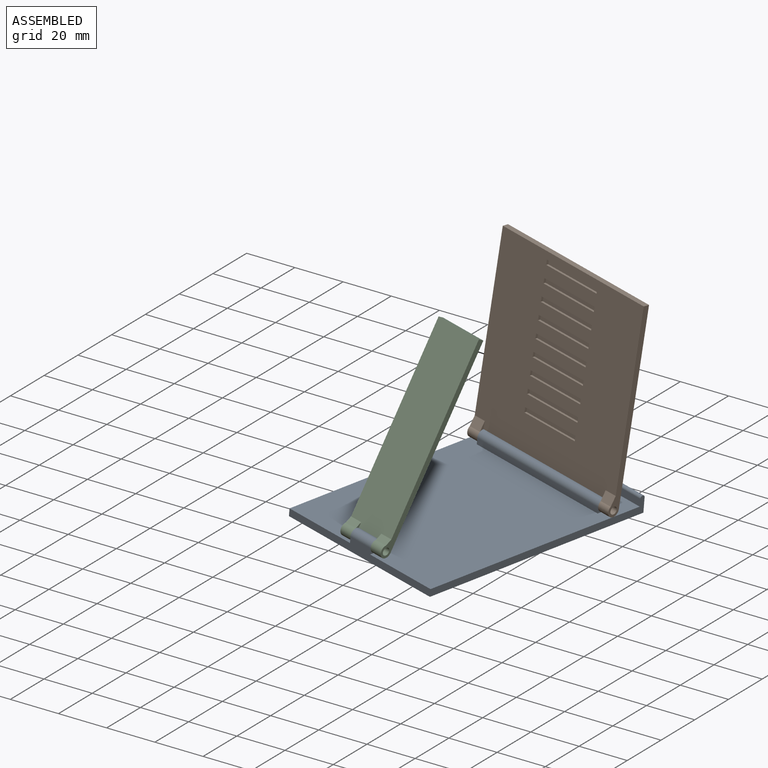
[diagram: assembled view]
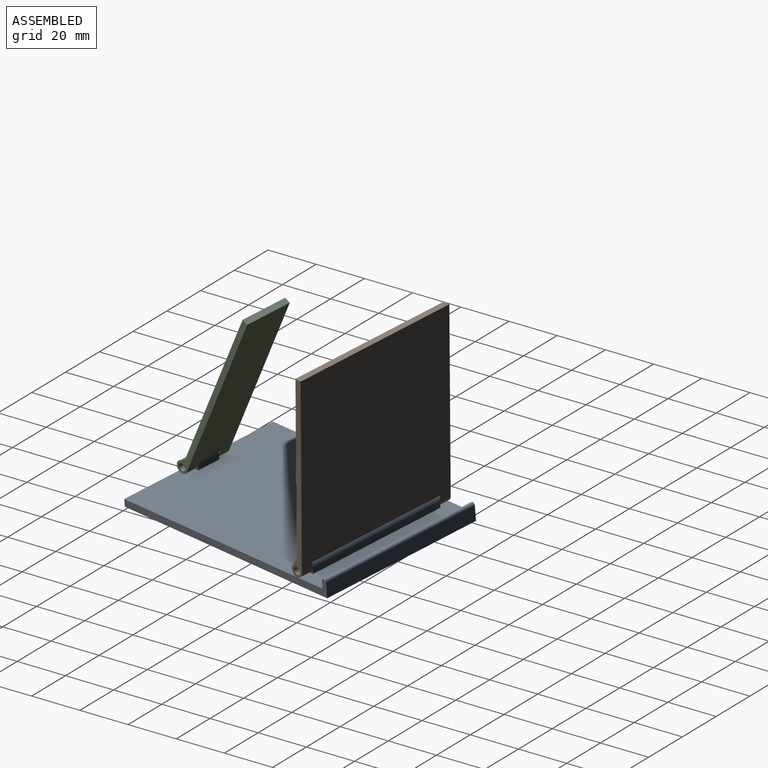
[diagram: assembled view, second angle]
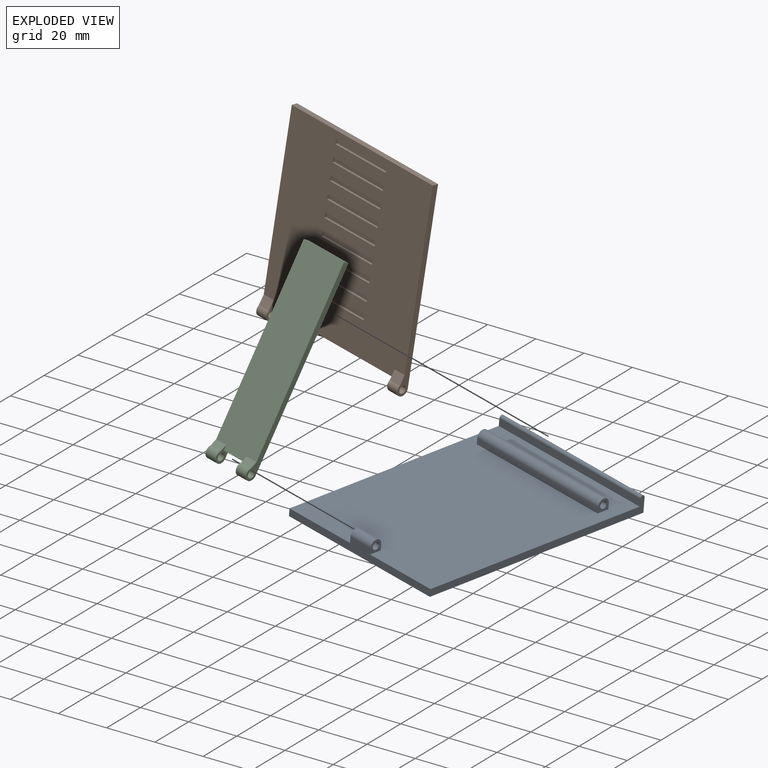
[diagram: exploded view]
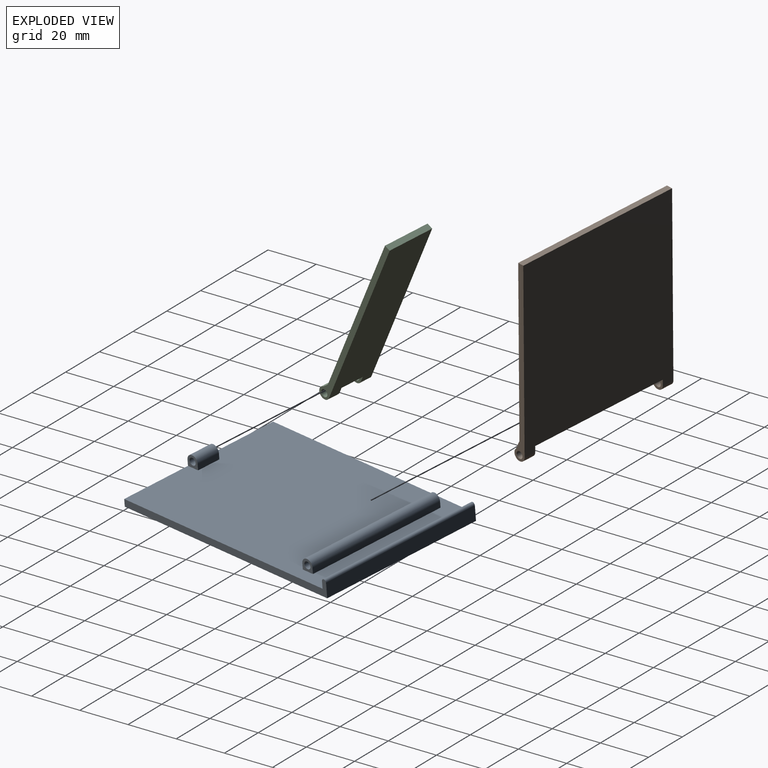
[diagram: exploded view, second angle]
ASSEMBLY  parts=3 mates=2
PART A: 19 faces, bbox 70x100x8 mm
  f0: plane 98x70mm, normal (0,0,1), area 6510mm2, adj f1,f3,f4,f6,f8,f9,f10,f11
  f1: plane 100x7mm, normal (1,0,0), area 307.6mm2, adj f0,f2,f4,f5,f6,f7
  f2: plane 70x6mm, normal (0,1,0), area 420mm2, adj f1,f3,f5,f7
  f3: plane 100x7mm, normal (-1,0,0), area 307.6mm2, adj f0,f2,f4,f5,f6,f7
  f4: plane 70x5.5mm, normal (0,-1,0), area 235mm2, adj f0,f1,f3,f5,f14,f15,f17
  f5: plane 100x70mm, normal (0,0,-1), area 7000mm2, adj f1,f2,f3,f4
  f6: plane 70x3mm, normal (0,-1,0), area 210mm2, adj f0,f1,f3,f7
  f7: cylinder r=1mm len=70mm, axis (1,0,0), area 219.9mm2, adj f1,f2,f3,f6
  f8: plane 5x5mm, normal (1,0,0), area 15.2mm2, adj f0,f9,f11,f12,f13
  f9: plane 60x2.5mm, normal (0,1,0), area 150mm2, adj f0,f8,f10,f12
  f10: plane 5x5mm, normal (-1,0,0), area 15.2mm2, adj f0,f9,f11,f12,f13
  f11: plane 60x2.5mm, normal (0,-1,0), area 150mm2, adj f0,f8,f10,f12
  f12: cylinder r=2.5mm len=60mm, axis (-1,0,0), area 471.2mm2, adj f8,f9,f10,f11
  f13: cylinder r=1.5mm len=60mm, axis (1,0,0), area 565.5mm2, adj f8,f10
  f14: plane 5x5mm, normal (-1,0,0), area 15.2mm2, adj f0,f4,f16,f17,f18
  f15: plane 5x5mm, normal (1,0,0), area 15.2mm2, adj f0,f4,f16,f17,f18
  f16: plane 10x2.5mm, normal (0,1,0), area 25mm2, adj f0,f14,f15,f17
  f17: cylinder r=2.5mm len=10mm, axis (1,0,0), area 78.5mm2, adj f4,f14,f15,f16
  f18: cylinder r=1.5mm len=10mm, axis (1,0,0), area 94.2mm2, adj f14,f15
PART B: 59 faces, bbox 70x80x5 mm
  f0: plane 75x70mm, normal (0,0,1), area 4769.1mm2, adj f1,f2,f3,f4,f5,f6,f12,f13
  f1: plane 60x2.5mm, normal (0,-1,0), area 150mm2, adj f0,f5,f6,f7
  f2: plane 80x5mm, normal (1,0,0), area 203.8mm2, adj f0,f3,f7,f9,f11,f57
  f3: plane 70x2.5mm, normal (0,1,0), area 175mm2, adj f0,f2,f4,f7
  f4: plane 80x5mm, normal (-1,0,0), area 203.8mm2, adj f0,f3,f7,f8,f10,f58
  f5: plane 8.09x5mm, normal (-1,0,0), area 16.3mm2, adj f0,f1,f7,f9,f11,f57
  f6: plane 8.09x5mm, normal (1,0,0), area 16.3mm2, adj f0,f1,f7,f8,f10,f58
  f7: plane 77.5x70mm, normal (0,0,-1), area 5275mm2, adj f1,f2,f3,f4,f5,f6,f10,f11
  f8: cylinder r=1.5mm len=5mm, axis (-1,0,0), area 47.1mm2, adj f4,f6
  f9: cylinder r=1.5mm len=5mm, axis (-1,0,0), area 47.1mm2, adj f2,f5
  f10: cylinder r=2.5mm len=5mm, axis (-1,0,0), area 49.8mm2, adj f4,f6,f7,f58
  f11: cylinder r=2.5mm len=5mm, axis (-1,0,0), area 49.8mm2, adj f2,f5,f7,f57
  f12: plane 25x1mm, normal (0,-1,0), area 25mm2, adj f0,f13,f15,f16
  f13: plane 2x1mm, normal (1,0,0), area 2mm2, adj f0,f12,f14,f16
  f14: plane 25x1mm, normal (0,1,0), area 25mm2, adj f0,f13,f15,f16
  f15: plane 2x1mm, normal (-1,0,0), area 2mm2, adj f0,f12,f14,f16
  f16: plane 25x2mm, normal (0,0,1), area 50mm2, adj f12,f13,f14,f15
  f17: plane 25x1mm, normal (0,-1,0), area 25mm2, adj f0,f18,f20,f21
  f18: plane 2x1mm, normal (1,0,0), area 2mm2, adj f0,f17,f19,f21
  f19: plane 25x1mm, normal (0,1,0), area 25mm2, adj f0,f18,f20,f21
  f20: plane 2x1mm, normal (-1,0,0), area 2mm2, adj f0,f17,f19,f21
  f21: plane 25x2mm, normal (0,0,1), area 50mm2, adj f17,f18,f19,f20
  f22: plane 25x1mm, normal (0,-1,0), area 25mm2, adj f0,f23,f25,f26
  f23: plane 2x1mm, normal (1,0,0), area 2mm2, adj f0,f22,f24,f26
  f24: plane 25x1mm, normal (0,1,0), area 25mm2, adj f0,f23,f25,f26
  f25: plane 2x1mm, normal (-1,0,0), area 2mm2, adj f0,f22,f24,f26
  f26: plane 25x2mm, normal (0,0,1), area 50mm2, adj f22,f23,f24,f25
  f27: plane 25x1mm, normal (0,-1,0), area 25mm2, adj f0,f28,f30,f31
  f28: plane 2x1mm, normal (1,0,0), area 2mm2, adj f0,f27,f29,f31
  f29: plane 25x1mm, normal (0,1,0), area 25mm2, adj f0,f28,f30,f31
  f30: plane 2x1mm, normal (-1,0,0), area 2mm2, adj f0,f27,f29,f31
  f31: plane 25x2mm, normal (0,0,1), area 50mm2, adj f27,f28,f29,f30
  f32: plane 25x1mm, normal (0,-1,0), area 25mm2, adj f0,f33,f35,f36
  f33: plane 2x1mm, normal (1,0,0), area 2mm2, adj f0,f32,f34,f36
  f34: plane 25x1mm, normal (0,1,0), area 25mm2, adj f0,f33,f35,f36
  f35: plane 2x1mm, normal (-1,0,0), area 2mm2, adj f0,f32,f34,f36
  f36: plane 25x2mm, normal (0,0,1), area 50mm2, adj f32,f33,f34,f35
  f37: plane 25x1mm, normal (0,-1,0), area 25mm2, adj f0,f38,f40,f41
  f38: plane 2x1mm, normal (1,0,0), area 2mm2, adj f0,f37,f39,f41
  f39: plane 25x1mm, normal (0,1,0), area 25mm2, adj f0,f38,f40,f41
  f40: plane 2x1mm, normal (-1,0,0), area 2mm2, adj f0,f37,f39,f41
  f41: plane 25x2mm, normal (0,0,1), area 50mm2, adj f37,f38,f39,f40
  f42: plane 25x1mm, normal (0,-1,0), area 25mm2, adj f0,f43,f45,f46
  f43: plane 2x1mm, normal (1,0,0), area 2mm2, adj f0,f42,f44,f46
  f44: plane 25x1mm, normal (0,1,0), area 25mm2, adj f0,f43,f45,f46
  f45: plane 2x1mm, normal (-1,0,0), area 2mm2, adj f0,f42,f44,f46
  f46: plane 25x2mm, normal (0,0,1), area 50mm2, adj f42,f43,f44,f45
  f47: plane 25x1mm, normal (0,-1,0), area 25mm2, adj f0,f48,f50,f51
  f48: plane 2x1mm, normal (1,0,0), area 2mm2, adj f0,f47,f49,f51
  f49: plane 25x1mm, normal (0,1,0), area 25mm2, adj f0,f48,f50,f51
  f50: plane 2x1mm, normal (-1,0,0), area 2mm2, adj f0,f47,f49,f51
  f51: plane 25x2mm, normal (0,0,1), area 50mm2, adj f47,f48,f49,f50
  f52: plane 2x1mm, normal (-1,0,0), area 2mm2, adj f0,f53,f55,f56
  f53: plane 25x1mm, normal (0,-1,0), area 25mm2, adj f0,f52,f54,f56
  f54: plane 2x1mm, normal (1,0,0), area 2mm2, adj f0,f53,f55,f56
  f55: plane 25x1mm, normal (0,1,0), area 25mm2, adj f0,f52,f54,f56
  f56: plane 25x2mm, normal (0,0,1), area 50mm2, adj f52,f53,f54,f55
  f57: plane 5x3.73mm, normal (0,0.41,0.91), area 20.4mm2, adj f0,f2,f5,f11
  f58: plane 5x3.73mm, normal (0,0.41,0.91), area 20.4mm2, adj f0,f4,f6,f10
PART C: 14 faces, bbox 20x82x5 mm
  f0: plane 20x2.5mm, normal (0,-1,0), area 50mm2, adj f1,f3,f6,f11
  f1: plane 82x5mm, normal (1,0,0), area 207.7mm2, adj f0,f6,f7,f10,f11,f13
  f2: plane 10x2.5mm, normal (0,1,0), area 25mm2, adj f4,f5,f6,f11
  f3: plane 82x5mm, normal (-1,0,0), area 207.7mm2, adj f0,f6,f8,f9,f11,f12
  f4: plane 7.11x5mm, normal (-1,0,0), area 15.2mm2, adj f2,f6,f7,f10,f11,f13
  f5: plane 7.11x5mm, normal (1,0,0), area 15.2mm2, adj f2,f6,f8,f9,f11,f12
  f6: plane 79.5x20mm, normal (0,0,-1), area 1565mm2, adj f0,f1,f2,f3,f4,f5,f7,f8
  f7: cylinder r=2.5mm len=5mm, axis (1,0,0), area 51.7mm2, adj f1,f4,f6,f13
  f8: cylinder r=2.5mm len=5mm, axis (1,0,0), area 51.7mm2, adj f3,f5,f6,f12
  f9: cylinder r=1.5mm len=5mm, axis (1,0,0), area 47.1mm2, adj f3,f5
  f10: cylinder r=1.5mm len=5mm, axis (1,0,0), area 47.1mm2, adj f1,f4
  f11: plane 77x20mm, normal (0,0,1), area 1518.9mm2, adj f0,f1,f2,f3,f4,f5,f12,f13
  f12: plane 5x2.51mm, normal (0,-0.48,0.88), area 14.3mm2, adj f3,f5,f8,f11
  f13: plane 5x2.51mm, normal (0,-0.48,0.88), area 14.3mm2, adj f1,f4,f7,f11
PLACE A rot(axis=(0.02,0.43,-0.9),12.8deg) t=(-5.44,3.7,-6.85)mm
PLACE B rot(axis=(0.99,-0.05,-0.16),86deg) t=(6.84,43.52,35.38)mm
PLACE C rot(axis=(-0.01,-0.52,0.85),167.3deg) t=(-7.28,-23.79,31.6)mm
MATE revolute A.f12 <-> B.f8  axis (-0.98,0.2,0.1) through (-27.09,44.39,1.32)mm
MATE revolute C.f7 <-> A.f17  axis (0.98,-0.2,-0.1) through (-19.29,-41.92,-0.65)mm
